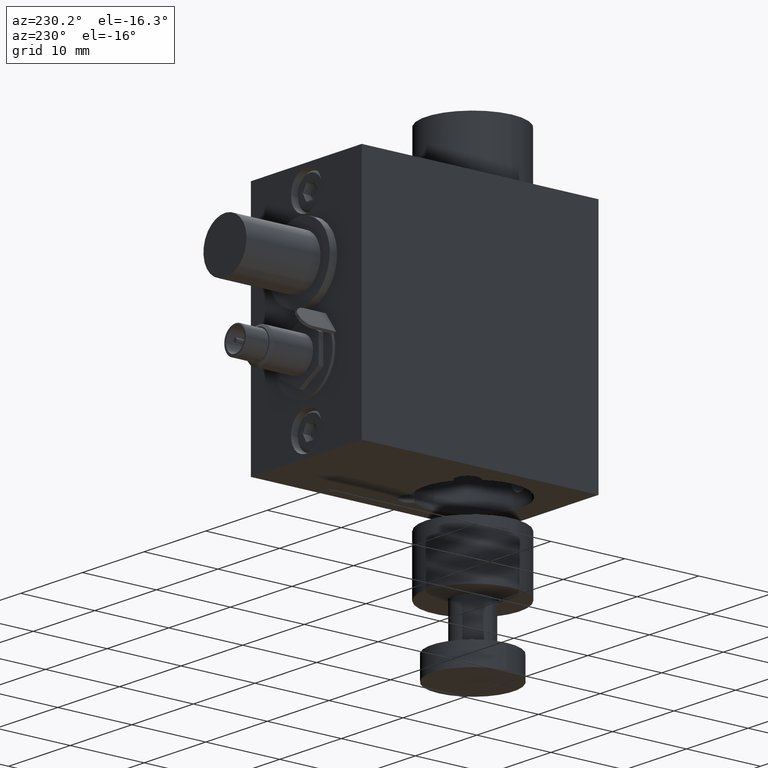
[diagram: clean part render]
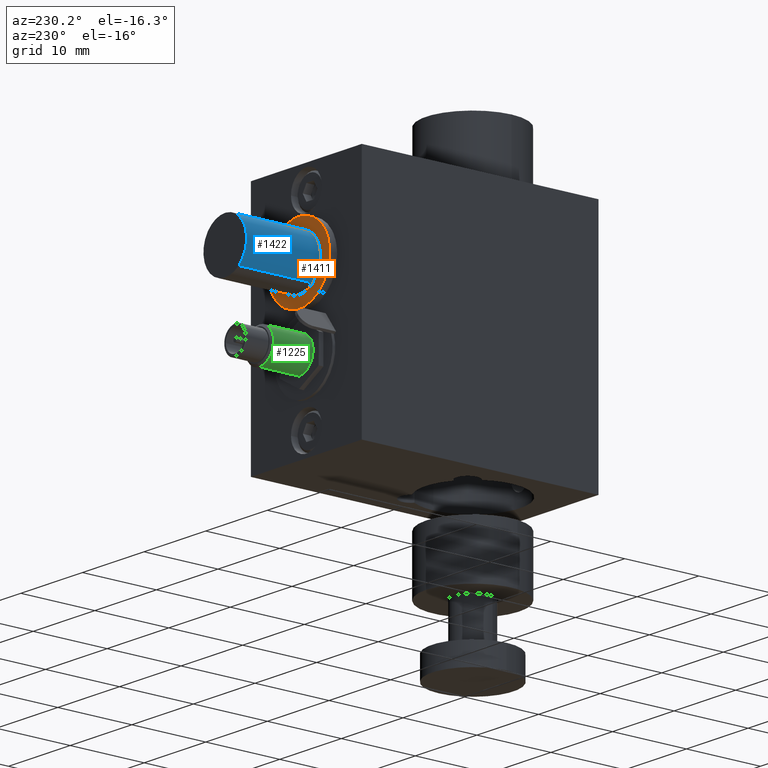
[diagram: same view with three faces highlighted in distinct colors, each labeled with its STEP entity id]
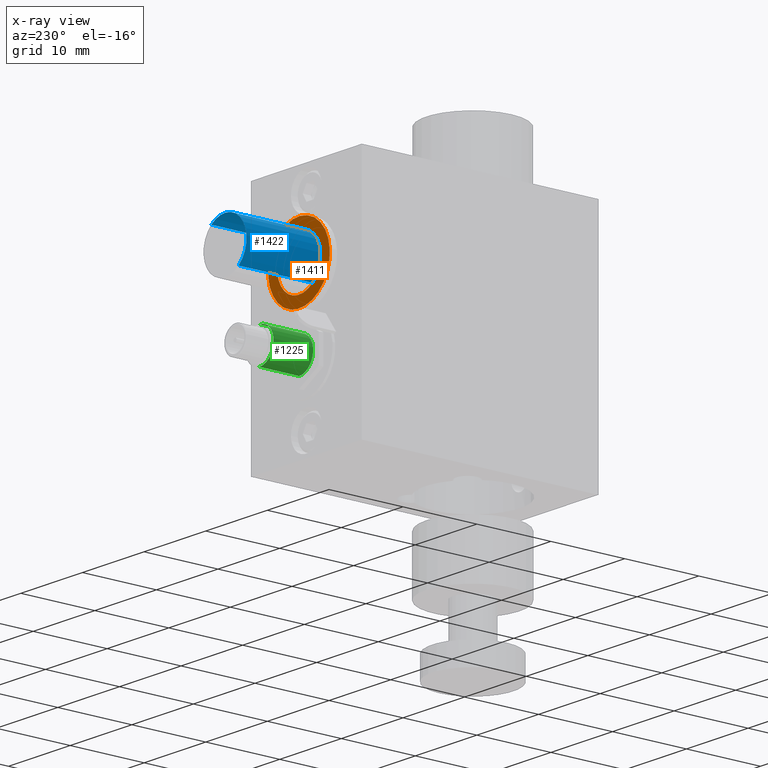
[diagram: x-ray of the same camera — body ghosted, the three highlighted faces saturated]
A machine part, auxiliary view with three faces highlighted in distinct colors.
The next image is the same camera in x-ray (body ghosted, the three faces saturated) — at least one of them is partly hidden behind the body in this view.
Their STEP definitions:

[orange] entity #1411 — the highlighted planar face has unit normal (0, 1, -0).
#1381 = VERTEX_POINT ( 'NONE', #5874 ) ;
#1383 = EDGE_CURVE ( 'NONE', #1384, #1381, #5873, .T. ) ;
#1384 = VERTEX_POINT ( 'NONE', #5868 ) ;
#1410 = EDGE_CURVE ( 'NONE', #1381, #1384, #5991, .T. ) ;
#1411 = ADVANCED_FACE ( 'NONE', ( #5986, #5985 ), #6027, .T. ) ;
#1412 = EDGE_LOOP ( 'NONE', ( #1413, #1414 ) ) ;
#1413 = ORIENTED_EDGE ( 'NONE', *, *, #1383, .T. ) ;
#1414 = ORIENTED_EDGE ( 'NONE', *, *, #1410, .T. ) ;
#1415 = EDGE_LOOP ( 'NONE', ( #1459, #1460 ) ) ;
#1426 = EDGE_CURVE ( 'NONE', #1435, #1434, #6082, .T. ) ;
#1433 = EDGE_CURVE ( 'NONE', #1434, #1435, #6106, .T. ) ;
#1434 = VERTEX_POINT ( 'NONE', #6102 ) ;
#1435 = VERTEX_POINT ( 'NONE', #6101 ) ;
#1459 = ORIENTED_EDGE ( 'NONE', *, *, #1433, .F. ) ;
#1460 = ORIENTED_EDGE ( 'NONE', *, *, #1426, .F. ) ;
#5868 = CARTESIAN_POINT ( 'NONE',  ( 1.321233086667423300, 23.93620178041542300, -15.13325096553118400 ) ) ;
#5869 = DIRECTION ( 'NONE',  ( 0.6339795550189445400, 0.0000000000000000000, 0.7733498068907633800 ) ) ;
#5870 = DIRECTION ( 'NONE',  ( 1.387778780781445400E-017, 1.000000000000000000, -1.646463124818846300E-017 ) ) ;
#5871 = CARTESIAN_POINT ( 'NONE',  ( -1.848664688427300100, 23.93620178041542300, -18.99999999998500000 ) ) ;
#5872 = AXIS2_PLACEMENT_3D ( 'NONE', #5871, #5870, #5869 ) ;
#5873 = CIRCLE ( 'NONE', #5872, 5.000000000000000900 ) ;
#5874 = CARTESIAN_POINT ( 'NONE',  ( -5.018562463522022700, 23.93620178041542300, -22.86674903443881800 ) ) ;
#5985 = FACE_BOUND ( 'NONE', #1415, .T. ) ;
#5986 = FACE_OUTER_BOUND ( 'NONE', #1412, .T. ) ;
#5987 = DIRECTION ( 'NONE',  ( 0.6339795550189445400, 0.0000000000000000000, 0.7733498068907633800 ) ) ;
#5988 = DIRECTION ( 'NONE',  ( 1.387778780781445400E-017, 1.000000000000000000, -1.646463124818846300E-017 ) ) ;
#5989 = CARTESIAN_POINT ( 'NONE',  ( -1.848664688427300100, 23.93620178041542300, -18.99999999998500000 ) ) ;
#5990 = AXIS2_PLACEMENT_3D ( 'NONE', #5989, #5988, #5987 ) ;
#5991 = CIRCLE ( 'NONE', #5990, 5.000000000000000900 ) ;
#6023 = DIRECTION ( 'NONE',  ( 0.6339795550189444300, 0.0000000000000000000, 0.7733498068907633800 ) ) ;
#6024 = DIRECTION ( 'NONE',  ( 1.637229806994904700E-017, 1.000000000000000000, -1.342174285496390500E-017 ) ) ;
#6025 = CARTESIAN_POINT ( 'NONE',  ( 0.8580596356903740200, 23.93620178041542300, -21.21892844255130600 ) ) ;
#6026 = AXIS2_PLACEMENT_3D ( 'NONE', #6025, #6024, #6023 ) ;
#6027 = PLANE ( 'NONE',  #6026 ) ;
#6079 = DIRECTION ( 'NONE',  ( 0.6339795550189442100, 0.0000000000000000000, 0.7733498068907636000 ) ) ;
#6080 = DIRECTION ( 'NONE',  ( 1.387778780781445400E-017, 1.000000000000000000, -1.646463124818846300E-017 ) ) ;
#6081 = AXIS2_PLACEMENT_3D ( 'NONE', #6087, #6080, #6079 ) ;
#6082 = CIRCLE ( 'NONE', #6081, 3.500000000000002200 ) ;
#6087 = CARTESIAN_POINT ( 'NONE',  ( -1.848664688427300100, 23.93620178041542300, -18.99999999998500000 ) ) ;
#6101 = CARTESIAN_POINT ( 'NONE',  ( -4.067593130993604900, 23.93620178041542300, -21.70672432410267700 ) ) ;
#6102 = CARTESIAN_POINT ( 'NONE',  ( 0.3702637541390064200, 23.93620178041542300, -16.29327567586732800 ) ) ;
#6103 = DIRECTION ( 'NONE',  ( 0.6339795550189442100, 0.0000000000000000000, 0.7733498068907636000 ) ) ;
#6104 = DIRECTION ( 'NONE',  ( 1.387778780781445400E-017, 1.000000000000000000, -1.646463124818846300E-017 ) ) ;
#6105 = AXIS2_PLACEMENT_3D ( 'NONE', #6111, #6104, #6103 ) ;
#6106 = CIRCLE ( 'NONE', #6105, 3.500000000000002200 ) ;
#6111 = CARTESIAN_POINT ( 'NONE',  ( -1.848664688427300100, 23.93620178041542300, -18.99999999998500000 ) ) ;

[blue] entity #1422 — the highlighted cylindrical surface (edge-blend (fillet) strip) has radius 3.5 mm, axis along (0, 1, -0).
#1363 = EDGE_CURVE ( 'NONE', #1435, #1364, #5858, .T. ) ;
#1364 = VERTEX_POINT ( 'NONE', #5854 ) ;
#1367 = VERTEX_POINT ( 'NONE', #5847 ) ;
#1402 = ORIENTED_EDGE ( 'NONE', *, *, #1421, .F. ) ;
#1416 = EDGE_CURVE ( 'NONE', #1434, #1367, #6021, .T. ) ;
#1421 = EDGE_CURVE ( 'NONE', #1364, #1367, #6052, .T. ) ;
#1422 = ADVANCED_FACE ( 'NONE', ( #6047 ), #6086, .T. ) ;
#1423 = EDGE_LOOP ( 'NONE', ( #1424, #1425, #1427, #1402 ) ) ;
#1424 = ORIENTED_EDGE ( 'NONE', *, *, #1363, .F. ) ;
#1425 = ORIENTED_EDGE ( 'NONE', *, *, #1426, .T. ) ;
#1426 = EDGE_CURVE ( 'NONE', #1435, #1434, #6082, .T. ) ;
#1427 = ORIENTED_EDGE ( 'NONE', *, *, #1416, .T. ) ;
#1434 = VERTEX_POINT ( 'NONE', #6102 ) ;
#1435 = VERTEX_POINT ( 'NONE', #6101 ) ;
#5847 = CARTESIAN_POINT ( 'NONE',  ( 0.3702637541390058100, 33.93620178041542300, -16.29327567586733100 ) ) ;
#5854 = CARTESIAN_POINT ( 'NONE',  ( -4.067593130993604000, 33.93620178041542300, -21.70672432410267300 ) ) ;
#5855 = DIRECTION ( 'NONE',  ( 1.387778780781445400E-017, 1.000000000000000000, -1.646463124818846300E-017 ) ) ;
#5856 = VECTOR ( 'NONE', #5855, 1000.000000000000000 ) ;
#5857 = CARTESIAN_POINT ( 'NONE',  ( -4.067593130993605800, 33.93620178041542300, -21.70672432410267700 ) ) ;
#5858 = LINE ( 'NONE', #5857, #5856 ) ;
#6018 = DIRECTION ( 'NONE',  ( 1.387778780781445400E-017, 1.000000000000000000, -1.646463124818846300E-017 ) ) ;
#6019 = VECTOR ( 'NONE', #6018, 1000.000000000000000 ) ;
#6020 = CARTESIAN_POINT ( 'NONE',  ( 0.3702637541390064700, 33.93620178041542300, -16.29327567586732800 ) ) ;
#6021 = LINE ( 'NONE', #6020, #6019 ) ;
#6047 = FACE_OUTER_BOUND ( 'NONE', #1423, .T. ) ;
#6048 = DIRECTION ( 'NONE',  ( 0.6339795550189446500, 0.0000000000000000000, 0.7733498068907632700 ) ) ;
#6049 = DIRECTION ( 'NONE',  ( 1.387778780781445400E-017, 1.000000000000000000, -1.646463124818846300E-017 ) ) ;
#6050 = CARTESIAN_POINT ( 'NONE',  ( -1.848664688427299900, 33.93620178041542300, -18.99999999998500000 ) ) ;
#6051 = AXIS2_PLACEMENT_3D ( 'NONE', #6050, #6049, #6048 ) ;
#6052 = CIRCLE ( 'NONE', #6051, 3.499999999999999100 ) ;
#6079 = DIRECTION ( 'NONE',  ( 0.6339795550189442100, 0.0000000000000000000, 0.7733498068907636000 ) ) ;
#6080 = DIRECTION ( 'NONE',  ( 1.387778780781445400E-017, 1.000000000000000000, -1.646463124818846300E-017 ) ) ;
#6081 = AXIS2_PLACEMENT_3D ( 'NONE', #6087, #6080, #6079 ) ;
#6082 = CIRCLE ( 'NONE', #6081, 3.500000000000002200 ) ;
#6083 = DIRECTION ( 'NONE',  ( 0.6339795550189447600, 0.0000000000000000000, 0.7733498068907631600 ) ) ;
#6084 = DIRECTION ( 'NONE',  ( 1.387778780781445400E-017, 1.000000000000000000, -1.646463124818846300E-017 ) ) ;
#6085 = AXIS2_PLACEMENT_3D ( 'NONE', #6088, #6084, #6083 ) ;
#6086 = CYLINDRICAL_SURFACE ( 'NONE', #6085, 3.499999999999999600 ) ;
#6087 = CARTESIAN_POINT ( 'NONE',  ( -1.848664688427300100, 23.93620178041542300, -18.99999999998500000 ) ) ;
#6088 = CARTESIAN_POINT ( 'NONE',  ( -1.848664688427299900, 33.93620178041542300, -18.99999999998500000 ) ) ;
#6101 = CARTESIAN_POINT ( 'NONE',  ( -4.067593130993604900, 23.93620178041542300, -21.70672432410267700 ) ) ;
#6102 = CARTESIAN_POINT ( 'NONE',  ( 0.3702637541390064200, 23.93620178041542300, -16.29327567586732800 ) ) ;

[green] entity #1225 — the highlighted cylindrical surface (edge-blend (fillet) strip) has radius 2.3 mm, axis along (-0, 1, -0).
#1202 = ORIENTED_EDGE ( 'NONE', *, *, #1203, .F. ) ;
#1203 = EDGE_CURVE ( 'NONE', #1229, #1219, #5342, .T. ) ;
#1219 = VERTEX_POINT ( 'NONE', #5398 ) ;
#1221 = EDGE_CURVE ( 'NONE', #1222, #1219, #5397, .T. ) ;
#1222 = VERTEX_POINT ( 'NONE', #5392 ) ;
#1225 = ADVANCED_FACE ( 'NONE', ( #5386 ), #5430, .T. ) ;
#1226 = EDGE_LOOP ( 'NONE', ( #1227, #1279, #1281, #1202 ) ) ;
#1227 = ORIENTED_EDGE ( 'NONE', *, *, #1228, .T. ) ;
#1228 = EDGE_CURVE ( 'NONE', #1229, #1278, #5431, .T. ) ;
#1229 = VERTEX_POINT ( 'NONE', #5422 ) ;
#1278 = VERTEX_POINT ( 'NONE', #5581 ) ;
#1279 = ORIENTED_EDGE ( 'NONE', *, *, #1280, .T. ) ;
#1280 = EDGE_CURVE ( 'NONE', #1278, #1222, #5580, .T. ) ;
#1281 = ORIENTED_EDGE ( 'NONE', *, *, #1221, .T. ) ;
#5334 = DIRECTION ( 'NONE',  ( -1.075528555105620200E-016, 1.000000000000000000, -1.646463124818845900E-017 ) ) ;
#5335 = VECTOR ( 'NONE', #5334, 1000.000000000000000 ) ;
#5336 = CARTESIAN_POINT ( 'NONE',  ( -1.846654247987797400, 43.20777817229870300, -31.29999912131727100 ) ) ;
#5342 = LINE ( 'NONE', #5336, #5335 ) ;
#5386 = FACE_OUTER_BOUND ( 'NONE', #1226, .T. ) ;
#5392 = CARTESIAN_POINT ( 'NONE',  ( -1.850675128866790900, 29.27620178041542300, -26.70000087865272300 ) ) ;
#5393 = DIRECTION ( 'NONE',  ( 0.0008741045389118972100, 0.0000000000000000000, -0.9999996179705545900 ) ) ;
#5394 = DIRECTION ( 'NONE',  ( 1.075528555105620200E-016, -1.000000000000000000, 1.646463124818845900E-017 ) ) ;
#5395 = CARTESIAN_POINT ( 'NONE',  ( -1.848664688427293300, 29.27620178041542300, -28.99999999998499700 ) ) ;
#5396 = AXIS2_PLACEMENT_3D ( 'NONE', #5395, #5394, #5393 ) ;
#5397 = CIRCLE ( 'NONE', #5396, 2.299999999999998900 ) ;
#5398 = CARTESIAN_POINT ( 'NONE',  ( -1.846654247987795900, 29.27620178041542300, -31.29999912131727100 ) ) ;
#5422 = CARTESIAN_POINT ( 'NONE',  ( -1.846654247987795400, 23.93620178041542700, -31.29999912131727100 ) ) ;
#5423 = DIRECTION ( 'NONE',  ( 0.0008741045389118972100, 0.0000000000000000000, -0.9999996179705545900 ) ) ;
#5424 = DIRECTION ( 'NONE',  ( -1.075528555105620200E-016, 1.000000000000000000, -1.646463124818845900E-017 ) ) ;
#5425 = CARTESIAN_POINT ( 'NONE',  ( -1.848664688427292800, 23.93620178041542700, -28.99999999998499700 ) ) ;
#5426 = AXIS2_PLACEMENT_3D ( 'NONE', #5425, #5424, #5423 ) ;
#5427 = DIRECTION ( 'NONE',  ( 0.0008741045389118972100, 0.0000000000000000000, -0.9999996179705545900 ) ) ;
#5428 = DIRECTION ( 'NONE',  ( -1.075528555105620200E-016, 1.000000000000000000, -1.646463124818845900E-017 ) ) ;
#5429 = AXIS2_PLACEMENT_3D ( 'NONE', #5432, #5428, #5427 ) ;
#5430 = CYLINDRICAL_SURFACE ( 'NONE', #5429, 2.299999999999998900 ) ;
#5431 = CIRCLE ( 'NONE', #5426, 2.299999999999998900 ) ;
#5432 = CARTESIAN_POINT ( 'NONE',  ( -1.848664688427294800, 43.20777817229870300, -28.99999999998499700 ) ) ;
#5580 = LINE ( 'NONE', #5629, #5628 ) ;
#5581 = CARTESIAN_POINT ( 'NONE',  ( -1.850675128866790900, 23.93620178041542700, -26.70000087865272300 ) ) ;
#5627 = DIRECTION ( 'NONE',  ( -1.075528555105620200E-016, 1.000000000000000000, -1.646463124818845900E-017 ) ) ;
#5628 = VECTOR ( 'NONE', #5627, 1000.000000000000000 ) ;
#5629 = CARTESIAN_POINT ( 'NONE',  ( -1.850675128866792600, 43.20777817229870300, -26.70000087865272300 ) ) ;